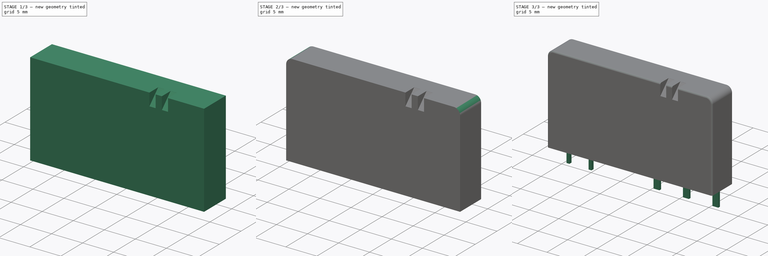
[diagram: build sequence overview — one tinted view per stage of 3, left to right]
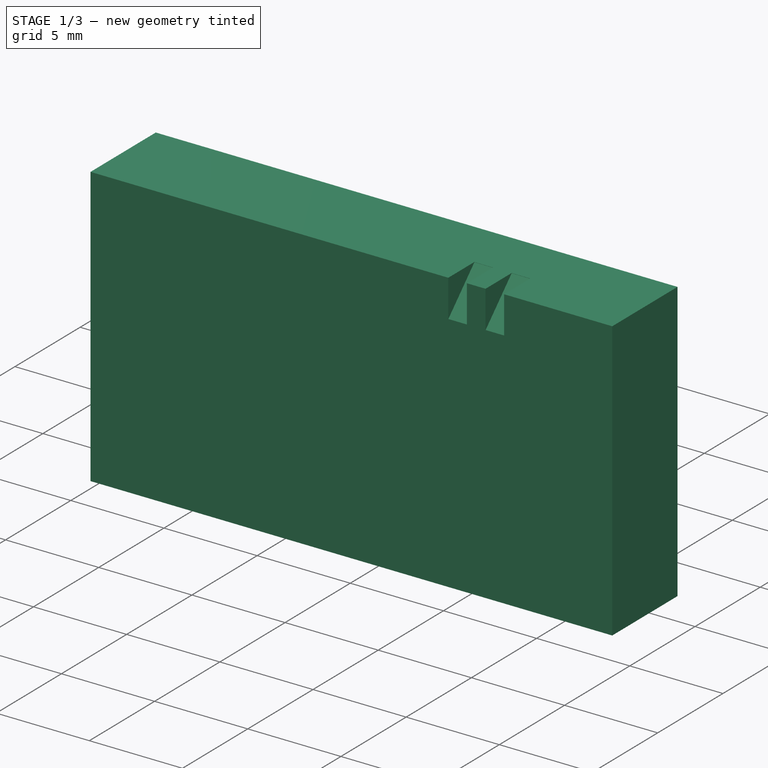
[diagram: stage 1 of 3 — iso view after this stage's code; geometry added in this stage tinted green]
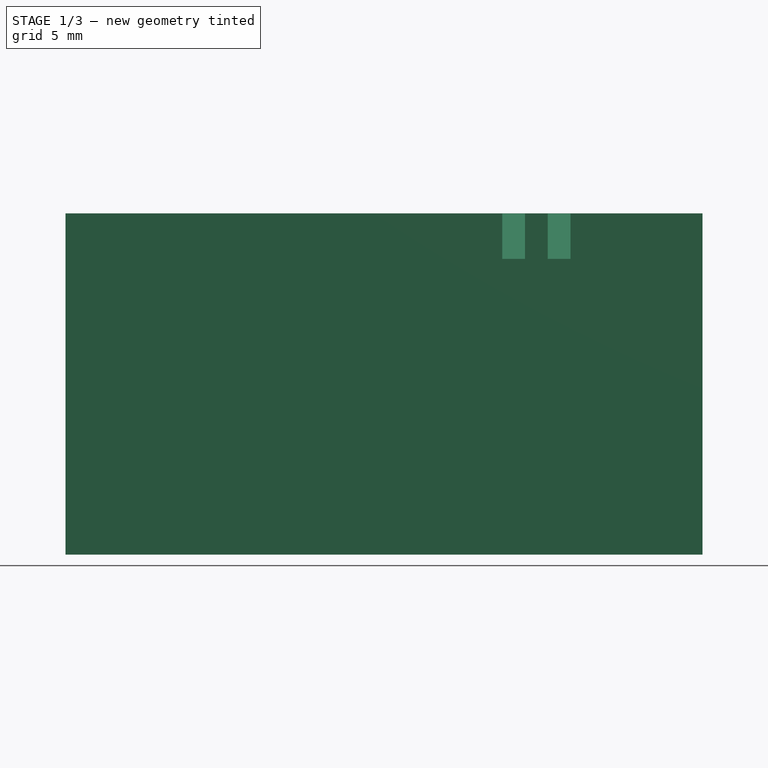
[diagram: stage 1 of 3 — front view after this stage's code; geometry added in this stage tinted green]
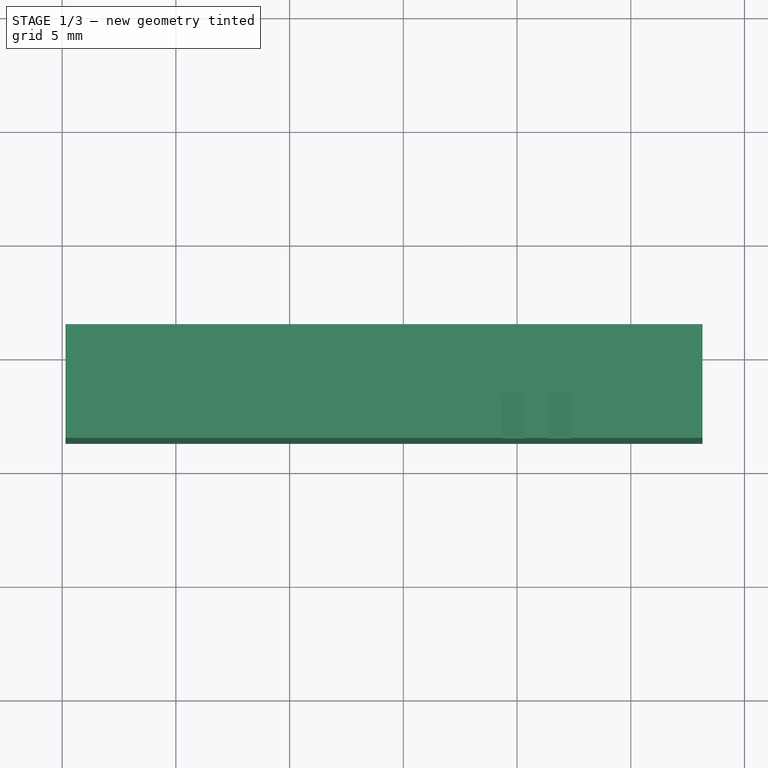
[diagram: stage 1 of 3 — top view after this stage's code; geometry added in this stage tinted green]
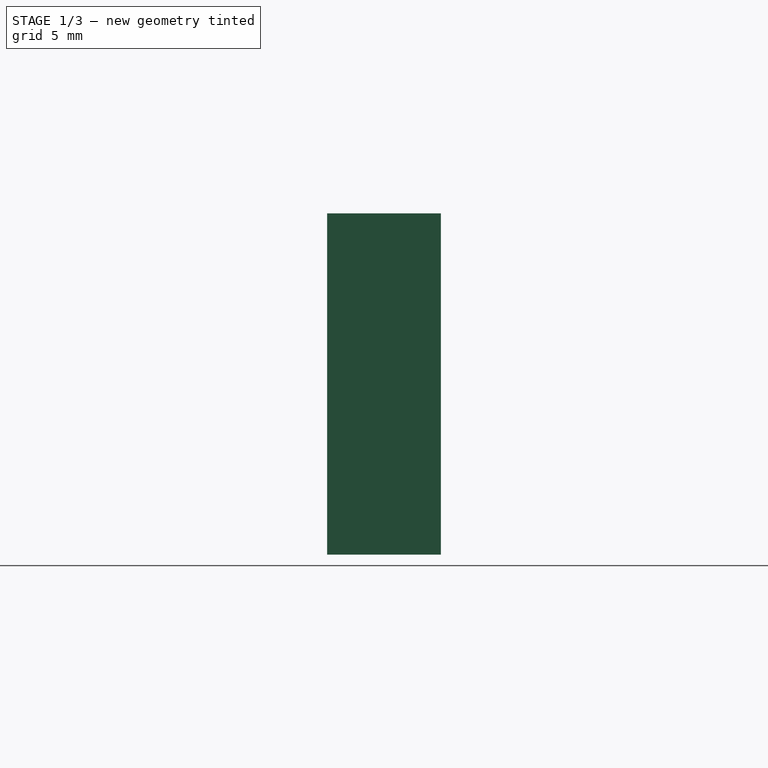
[diagram: stage 1 of 3 — right view after this stage's code; geometry added in this stage tinted green]
FCSTD DOCUMENT  (FreeCAD 0.16R6712 (Git))
Label: Relay_SPDT_Finder_34.51_Vertical
License: All rights reserved
LicenseURL: http://en.wikipedia.org/wiki/All_rights_reserved
objects: Sketcher::SketchObject×3, Part::Feature×3, PartDesign::Fillet×3, PartDesign::Pad×2, App::DocumentObjectGroup×1, PartDesign::Pocket×1, PartDesign::Chamfer×1, Part::MultiFuse×1
note: 17 computed .brp shape members not serialized (recipe doc carries the construction recipe); baked Part::Feature solids carry a one-line shape summary decoded from their .brp

FEATURE [Sketcher::SketchObject] Sketch001
  Placement = pos=(-3.75,0,0) rot=(0,0,1;0rad)
  sketch-geometry (4):
    g0: LineSegment StartX=-1.1 StartY=1.3 StartZ=0 EndX=26.9 EndY=1.3 EndZ=0
    g1: LineSegment StartX=26.9 StartY=1.3 StartZ=0 EndX=26.9 EndY=-3.7 EndZ=0
    g2: LineSegment StartX=26.9 StartY=-3.7 StartZ=0 EndX=-1.1 EndY=-3.7 EndZ=0
    g3: LineSegment StartX=-1.1 StartY=-3.7 StartZ=0 EndX=-1.1 EndY=1.3 EndZ=0
  constraints (12):
    c: Coincident(g0,g1)
    c: Coincident(g1,g2)
    c: Coincident(g2,g3)
    c: Coincident(g3,g0)
    c: Horizontal(g0)
    c: Horizontal(g2)
    c: Vertical(g1)
    c: Vertical(g3)
    c: DistanceX(g2,g2) = 28
    c: DistanceY(g1,g1) = 5
    c: DistanceX(g0,g-1) = 1.1
    c: DistanceY(g-1,g0) = 1.3
FEATURE [PartDesign::Pad] Pad001
  Length = 15
  Length2 = 100
  Placement = pos=(-3.75,0,0) rot=(0,0,1;0rad)
  Sketch = -> Sketch001
  Type = 0
FEATURE [Sketcher::SketchObject] Sketch002
  ExternalGeometry = -> [Pad001]
  Placement = pos=(-3.75,0,15) rot=(0,0,1;0rad)
  Support = -> Pad001 [Face6]
  expr: Constraints[23] = 1.3 + 4.5
  sketch-geometry (8):
    g0: LineSegment StartX=18.1 StartY=-3.7 StartZ=0 EndX=19.1 EndY=-3.7 EndZ=0
    g1: LineSegment StartX=19.1 StartY=-3.7 StartZ=0 EndX=19.1 EndY=-1.7 EndZ=0
    g2: LineSegment StartX=19.1 StartY=-1.7 StartZ=0 EndX=18.1 EndY=-1.7 EndZ=0
    g3: LineSegment StartX=18.1 StartY=-1.7 StartZ=0 EndX=18.1 EndY=-3.7 EndZ=0
    g4: LineSegment StartX=20.1 StartY=-3.7 StartZ=0 EndX=21.1 EndY=-3.7 EndZ=0
    g5: LineSegment StartX=21.1 StartY=-3.7 StartZ=0 EndX=21.1 EndY=-1.7 EndZ=0
    g6: LineSegment StartX=21.1 StartY=-1.7 StartZ=0 EndX=20.1 EndY=-1.7 EndZ=0
    g7: LineSegment StartX=20.1 StartY=-1.7 StartZ=0 EndX=20.1 EndY=-3.7 EndZ=0
  constraints (24):
    c: Coincident(g0,g1)
    c: Coincident(g1,g2)
    c: Coincident(g2,g3)
    c: Coincident(g3,g0)
    c: Horizontal(g0)
    c: Horizontal(g2)
    c: Vertical(g1)
    c: Vertical(g3)
    c: PointOnObject(g0,g-3)
    c: Coincident(g4,g5)
    c: Coincident(g5,g6)
    c: Coincident(g6,g7)
    c: Coincident(g7,g4)
    c: Horizontal(g4)
    c: Horizontal(g6)
    c: Vertical(g5)
    c: Vertical(g7)
    c: PointOnObject(g4,g-3)
    c: Equal(g6,g2)
    c: Equal(g1,g7)
    c: DistanceY(g5,g5) = 2
    c: DistanceX(g6,g6) = 1
    c: DistanceX(g1,g6) = 1
    c: DistanceX(g4,g-3) = 5.8
FEATURE [PartDesign::Pocket] Pocket
  Length = 2
  Placement = pos=(-3.75,0,0) rot=(0,0,1;0rad)
  Sketch = -> Sketch002
  Type = 0
FEATURE [PartDesign::Chamfer] Chamfer
  Base = -> Pocket [Edge29,Edge34]
  Placement = pos=(-3.75,0,0) rot=(0,0,1;0rad)
  Size = 1.99
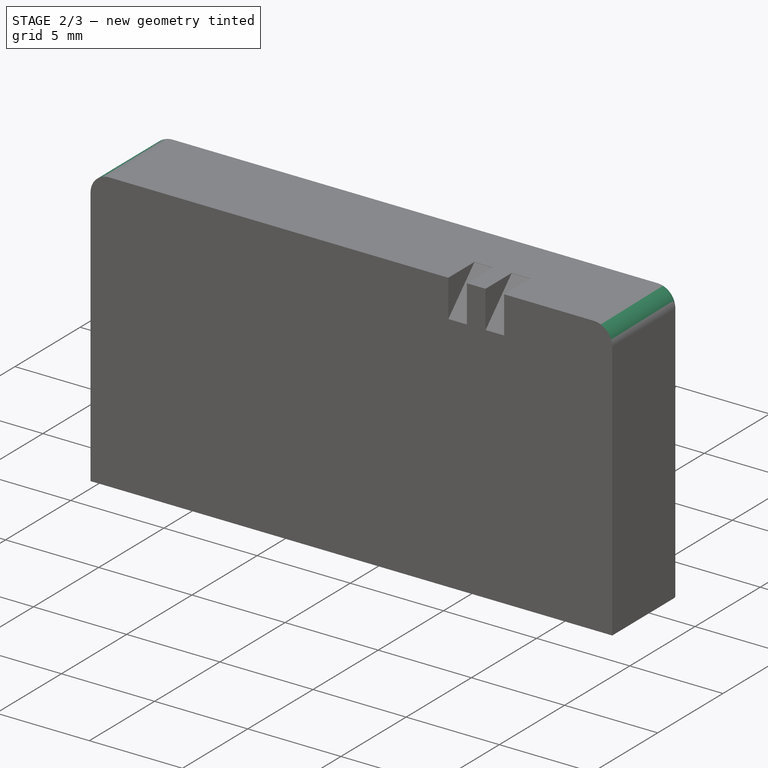
[diagram: stage 2 of 3 — iso view after this stage's code; geometry added in this stage tinted green]
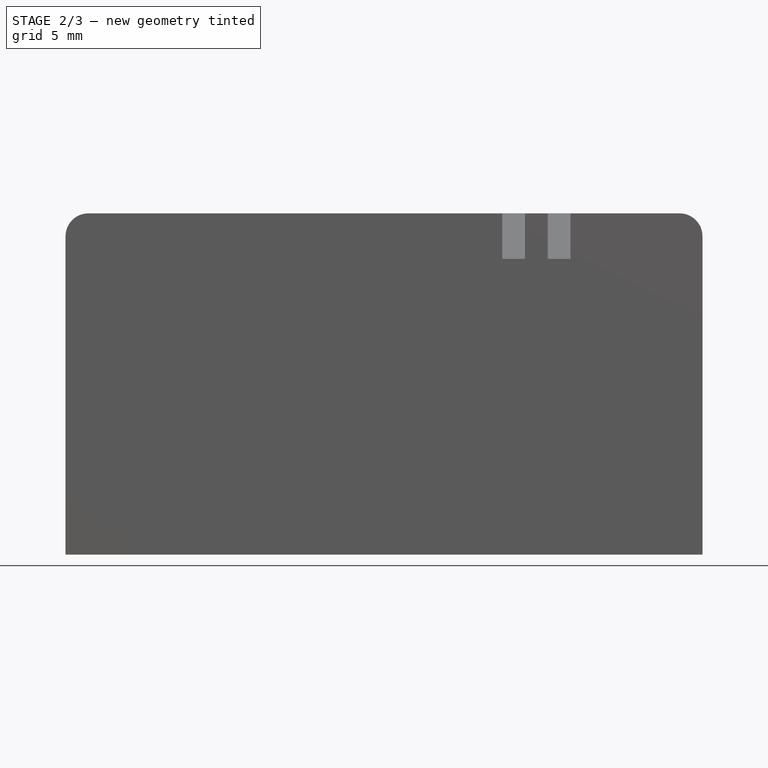
[diagram: stage 2 of 3 — front view after this stage's code; geometry added in this stage tinted green]
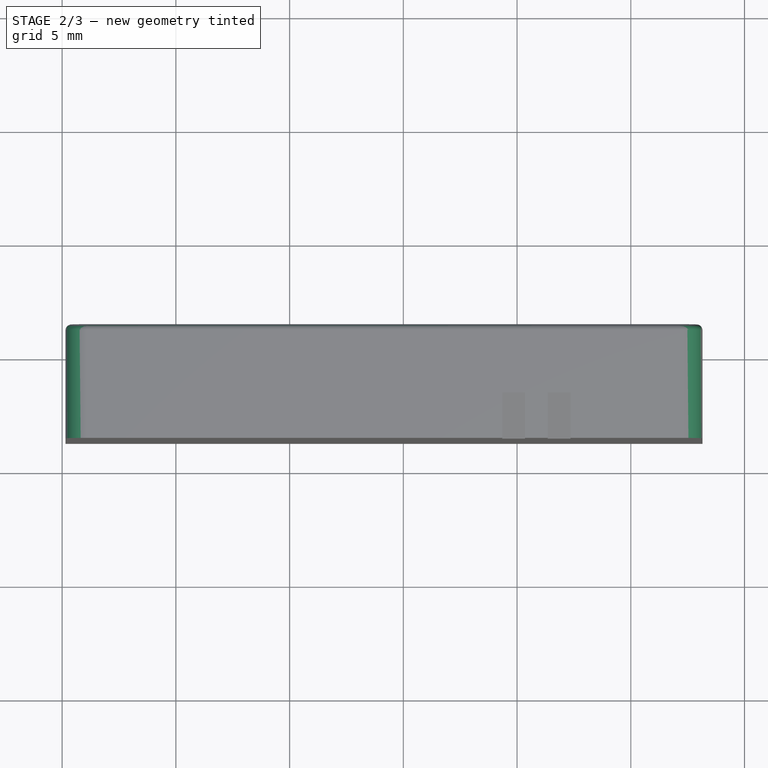
[diagram: stage 2 of 3 — top view after this stage's code; geometry added in this stage tinted green]
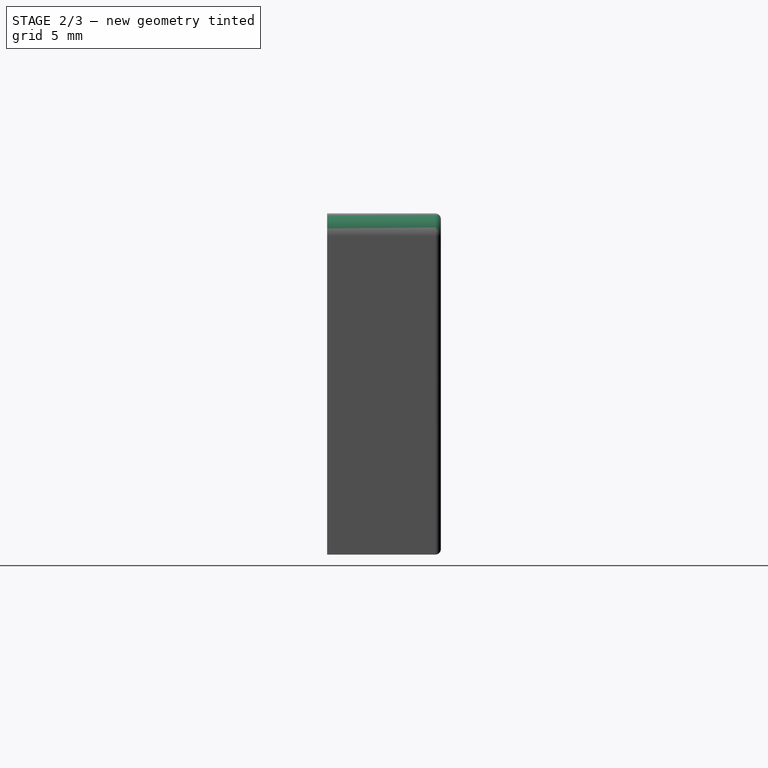
[diagram: stage 2 of 3 — right view after this stage's code; geometry added in this stage tinted green]
FEATURE [PartDesign::Fillet] Fillet
  Base = -> Chamfer [Edge29,Edge24]
  Placement = pos=(-3.75,0,0) rot=(0,0,1;0rad)
  Radius = 1
FEATURE [PartDesign::Fillet] Fillet001
  Base = -> Fillet [Edge17,Edge19,Edge20,Edge22,Edge30,Edge35]
  Placement = pos=(-3.75,0,0) rot=(0,0,1;0rad)
  Radius = 0.25
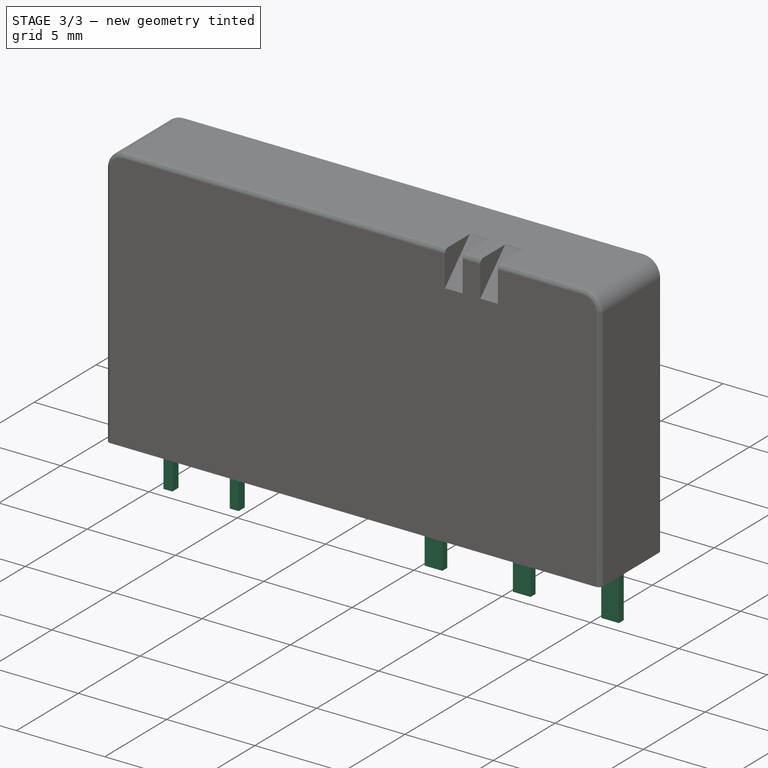
[diagram: stage 3 of 3 — iso view after this stage's code; geometry added in this stage tinted green]
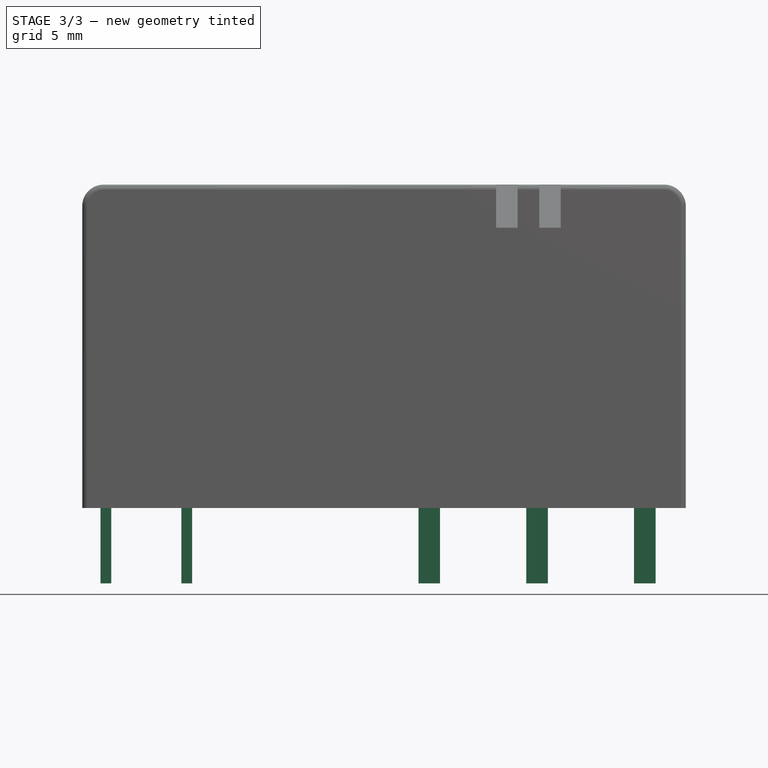
[diagram: stage 3 of 3 — front view after this stage's code; geometry added in this stage tinted green]
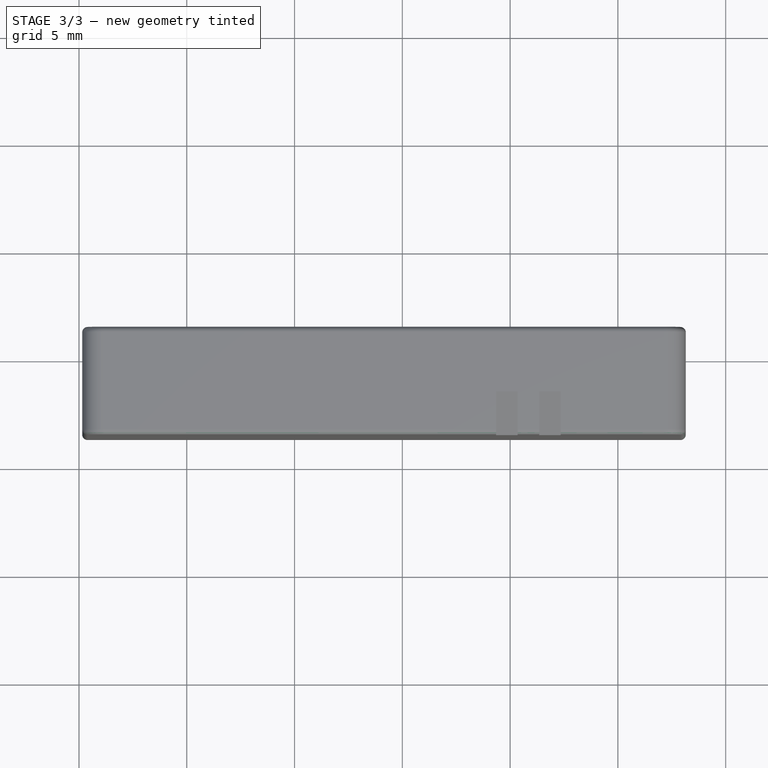
[diagram: stage 3 of 3 — top view after this stage's code; geometry added in this stage tinted green]
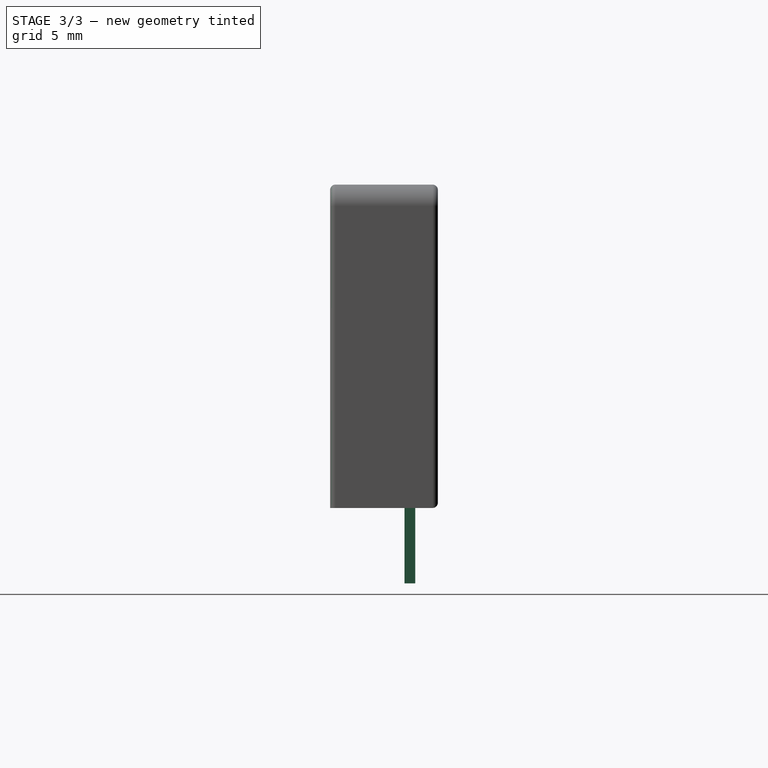
[diagram: stage 3 of 3 — right view after this stage's code; geometry added in this stage tinted green]
FEATURE [Sketcher::SketchObject] Sketch
  Placement = pos=(-3.75,0,0.5) rot=(0,0,1;0rad)
  sketch-geometry (30):
    g0: LineSegment StartX=-0.25 StartY=0.25 StartZ=0 EndX=0.25 EndY=0.25 EndZ=0
    g1: LineSegment StartX=0.25 StartY=0.25 StartZ=0 EndX=0.25 EndY=-0.25 EndZ=0
    g2: LineSegment StartX=0.25 StartY=-0.25 StartZ=0 EndX=-0.25 EndY=-0.25 EndZ=0
    g3: LineSegment StartX=-0.25 StartY=-0.25 StartZ=0 EndX=-0.25 EndY=0.25 EndZ=0
    g4: LineSegment StartX=3.5 StartY=0.25 StartZ=0 EndX=4 EndY=0.25 EndZ=0
    g5: LineSegment StartX=4 StartY=0.25 StartZ=0 EndX=4 EndY=-0.25 EndZ=0
    g6: LineSegment StartX=4 StartY=-0.25 StartZ=0 EndX=3.5 EndY=-0.25 EndZ=0
    g7: LineSegment StartX=3.5 StartY=-0.25 StartZ=0 EndX=3.5 EndY=0.25 EndZ=0
    g8: LineSegment StartX=14.5 StartY=0.2 StartZ=0 EndX=15.5 EndY=0.2 EndZ=0
    g9: LineSegment StartX=15.5 StartY=0.2 StartZ=0 EndX=15.5 EndY=-0.2 EndZ=0
    g10: LineSegment StartX=15.5 StartY=-0.2 StartZ=0 EndX=14.5 EndY=-0.2 EndZ=0
    g11: LineSegment StartX=14.5 StartY=-0.2 StartZ=0 EndX=14.5 EndY=0.2 EndZ=0
    g12: LineSegment StartX=19.5 StartY=0.2 StartZ=0 EndX=20.5 EndY=0.2 EndZ=0
    g13: LineSegment StartX=20.5 StartY=0.2 StartZ=0 EndX=20.5 EndY=-0.2 EndZ=0
    g14: LineSegment StartX=20.5 StartY=-0.2 StartZ=0 EndX=19.5 EndY=-0.2 EndZ=0
    g15: LineSegment StartX=19.5 StartY=-0.2 StartZ=0 EndX=19.5 EndY=0.2 EndZ=0
    g16: LineSegment StartX=24.5 StartY=0.2 StartZ=0 EndX=25.5 EndY=0.2 EndZ=0
    g17: LineSegment StartX=25.5 StartY=0.2 StartZ=0 EndX=25.5 EndY=-0.2 EndZ=0
    g18: LineSegment StartX=25.5 StartY=-0.2 StartZ=0 EndX=24.5 EndY=-0.2 EndZ=0
    g19: LineSegment StartX=24.5 StartY=-0.2 StartZ=0 EndX=24.5 EndY=0.2 EndZ=0
    g20: LineSegment [constr] StartX=-0.25 StartY=0 StartZ=0 EndX=0.25 EndY=0 EndZ=0
    g21: LineSegment [constr] StartX=0 StartY=0.25 StartZ=0 EndX=0 EndY=-0.25 EndZ=0
    g22: LineSegment [constr] StartX=0 StartY=0.25 StartZ=0 EndX=3.75 EndY=0.25 EndZ=0
    g23: LineSegment [constr] StartX=15 StartY=0.2 StartZ=0 EndX=20 EndY=0.2 EndZ=0
    g24: LineSegment [constr] StartX=20 StartY=0.2 StartZ=0 EndX=25 EndY=0.2 EndZ=0
    g25: LineSegment [constr] StartX=15 StartY=0.2 StartZ=0 EndX=15 EndY=-0.2 EndZ=0
    g26: GeomPoint [constr] X=15 Y=0 Z=0
    g27: LineSegment [constr] StartX=14.5 StartY=0 StartZ=0 EndX=15.5 EndY=0 EndZ=0
    g28: LineSegment [constr] StartX=15 StartY=0 StartZ=0 EndX=3.75 EndY=0 EndZ=0
    g29: LineSegment [constr] StartX=3.75 StartY=0.25 StartZ=0 EndX=3.75 EndY=-0.25 EndZ=0
  constraints (88):
    c: Coincident(g0,g1)
    c: Coincident(g1,g2)
    c: Coincident(g2,g3)
    c: Coincident(g3,g0)
    c: Horizontal(g0)
    c: Horizontal(g2)
    c: Vertical(g1)
    c: Vertical(g3)
    c: Coincident(g4,g5)
    c: Coincident(g5,g6)
    c: Coincident(g6,g7)
    c: Coincident(g7,g4)
    c: Horizontal(g4)
    c: Horizontal(g6)
    c: Vertical(g5)
    c: Vertical(g7)
    c: Coincident(g8,g9)
    c: Coincident(g9,g10)
    c: Coincident(g10,g11)
    c: Coincident(g11,g8)
    c: Horizontal(g8)
    c: Horizontal(g10)
    c: Vertical(g9)
    c: Vertical(g11)
    c: Coincident(g12,g13)
    c: Coincident(g13,g14)
    c: Coincident(g14,g15)
    c: Coincident(g15,g12)
    c: Horizontal(g12)
    c: Horizontal(g14)
    c: Vertical(g13)
    c: Vertical(g15)
    c: Coincident(g16,g17)
    c: Coincident(g17,g18)
    c: Coincident(g18,g19)
    c: Coincident(g19,g16)
    c: Horizontal(g16)
    c: Horizontal(g18)
    c: Vertical(g17)
    c: Vertical(g19)
    c: PointOnObject(g20,g3)
    c: PointOnObject(g20,g1)
    c: Horizontal(g20)
    c: PointOnObject(g21,g2)
    c: Vertical(g21)
    c: PointOnObject(g-1,g21)
    c: PointOnObject(g-1,g20)
    c: Symmetric(g3,g3,g20)
    c: Symmetric(g0,g0,g21)
    c: DistanceX(g0,g0) = 0.5
    c: DistanceY(g3,g3) = 0.5
    c: Equal(g7,g1)
    c: Equal(g6,g2)
    c: Coincident(g22,g21)
    c: Horizontal(g22)
    c: Symmetric(g4,g4,g22)
    c: DistanceX(g22,g22) = 3.75
    c: Equal(g8,g12)
    c: Equal(g12,g16)
    c: Equal(g9,g13)
    c: Equal(g13,g17)
    c: Horizontal(g23)
    c: Coincident(g24,g23)
    c: PointOnObject(g24,g16)
    c: Horizontal(g24)
    c: Symmetric(g16,g16,g24)
    c: Symmetric(g12,g12,g23)
    c: Symmetric(g8,g8,g23)
    c: DistanceX(g8,g8) = 1
    c: DistanceY(g11,g11) = 0.4
    c: Coincident(g25,g23)
    c: PointOnObject(g25,g10)
    c: Vertical(g25)
    c: PointOnObject(g26,g25)
    c: PointOnObject(g26,g-1)
    c: DistanceX(g23,g23) = 5
    c: DistanceX(g24,g24) = 5
    c: PointOnObject(g27,g11)
    c: Horizontal(g27)
    c: Symmetric(g27,g27,g26)
    c: Symmetric(g25,g25,g26)
    c: Coincident(g28,g26)
    c: Horizontal(g28)
    c: Coincident(g29,g22)
    c: Vertical(g29)
    c: PointOnObject(g29,g6)
    c: Symmetric(g29,g29,g28)
    c: DistanceX(g28,g28) = 11.25
FEATURE [Part::Feature] FusionAxisZ1  label="Z"
  shape: bbox 0.8 x 0.8 x 14 mm, 8 faces (baked)
FEATURE [Part::Feature] FusionAxisY1  label="Y"
  Placement = pos=(0,0,0.05) rot=(-1,0,0;1.5708rad)
  shape: bbox 0.8 x 14 x 0.8 mm, 8 faces (baked)
FEATURE [Part::Feature] FusionAxisX1  label="X"
  Placement = pos=(0,-0.05,0) rot=(0,1,0;1.5708rad)
  shape: bbox 14 x 0.8 x 0.8 mm, 8 faces (baked)
FEATURE [App::DocumentObjectGroup] axis
  Group = -> [FusionAxisZ1,FusionAxisY1,FusionAxisX1]
FEATURE [PartDesign::Pad] Pad
  Length = 4
  Length2 = 100
  Placement = pos=(-3.75,0,0.5) rot=(0,0,1;0rad)
  Reversed = true
  Sketch = -> Sketch
  Type = 0
FEATURE [PartDesign::Fillet] Fillet002
  Base = -> Fillet001 [Edge15,Edge13,Edge17,Edge20,Edge12,Edge7,Edge3]
  Placement = pos=(-3.75,0,0) rot=(0,0,1;0rad)
  Radius = 0.25
FEATURE [Part::MultiFuse] Pad_mp_cp  label="Relay_SPDT_Finder_34.51_Vertical"
  Shapes = -> [Pad,Fillet002]
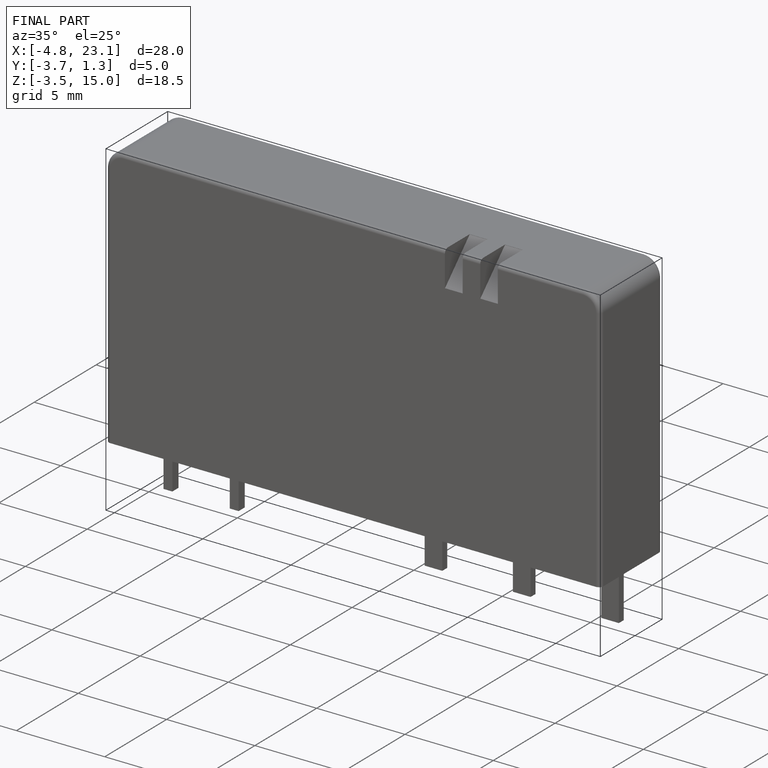
[diagram: finished part — iso view with bounding-box wireframe]
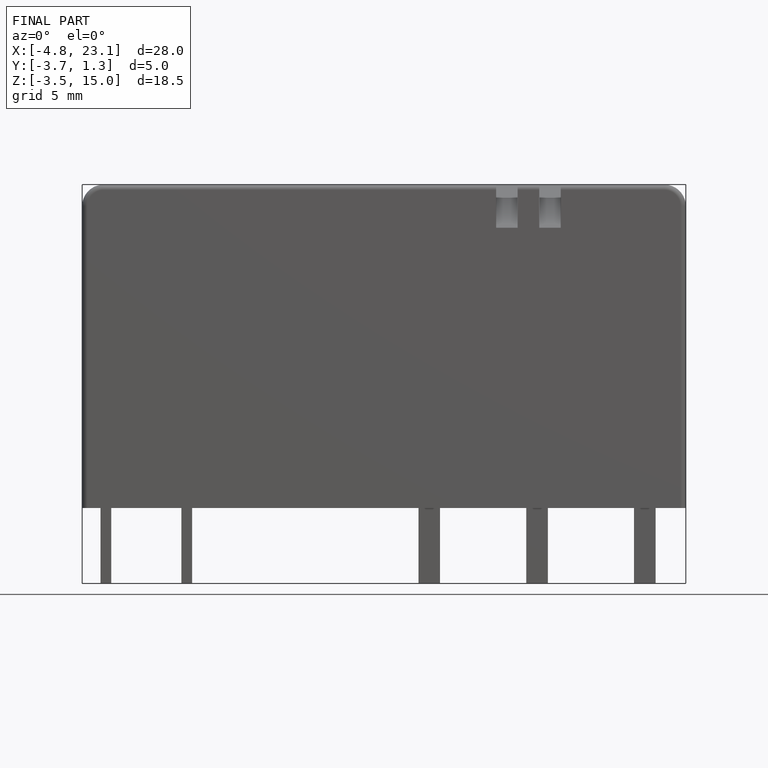
[diagram: finished part — front view with bounding-box wireframe]
